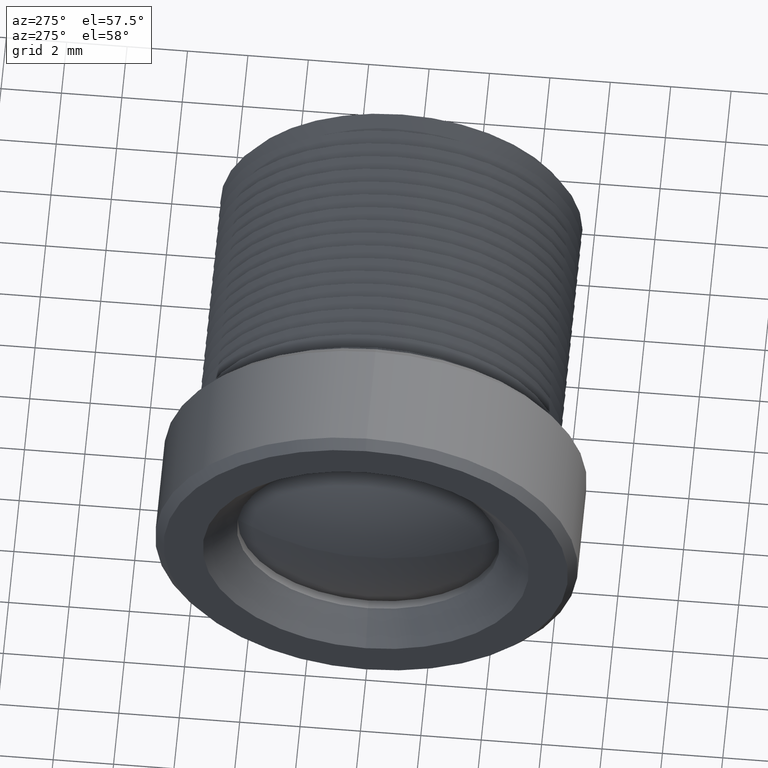
[diagram: clean part render]
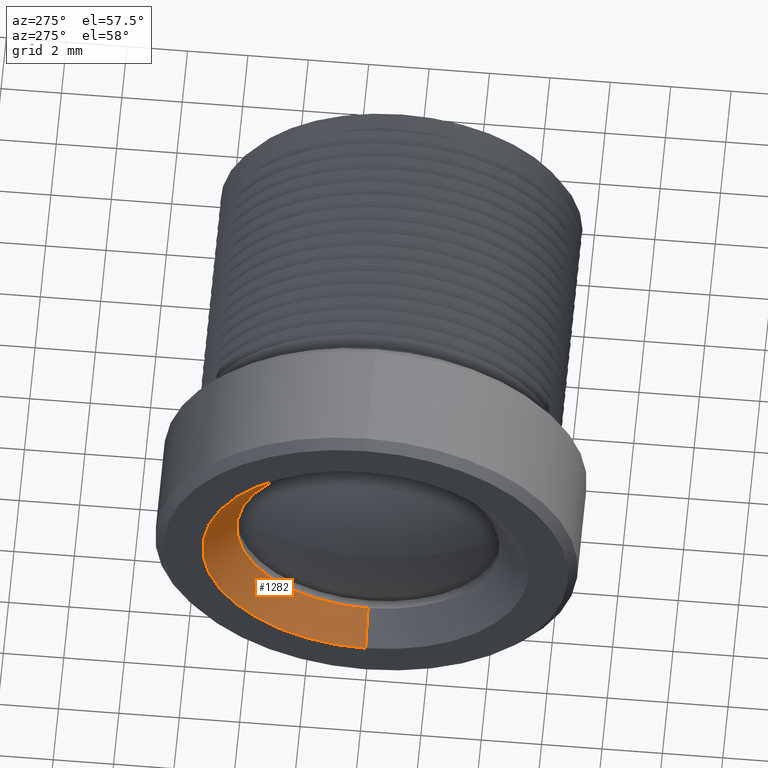
[diagram: same view with one face highlighted and labeled with its STEP entity id]
A machine part, auxiliary view. The second image highlights one B-rep face of the part: STEP entity #1282.
In plain terms, the highlighted conical surface has half-angle 49.399 deg.
Its self-contained STEP definition (entity closure, byte-faithful):
#27 = CARTESIAN_POINT ( 'NONE',  ( -8.000000000000000000, -0.001274935426565094055, 5.399999849494260040 ) ) ;
#156 = DIRECTION ( 'NONE',  ( 0.000000000000000000, -0.0002360991531231236139, 0.9999999721285947052 ) ) ;
#189 = EDGE_CURVE ( 'NONE', #1978, #2491, #1807, .T. ) ;
#262 = DIRECTION ( 'NONE',  ( -0.6507913734560208940, -0.0001792598408215759925, 0.7592565812037030959 ) ) ;
#324 = VERTEX_POINT ( 'NONE', #1598 ) ;
#327 = ORIENTED_EDGE ( 'NONE', *, *, #1578, .F. ) ;
#335 = EDGE_CURVE ( 'NONE', #1494, #324, #451, .T. ) ;
#420 = CARTESIAN_POINT ( 'NONE',  ( -8.000000000000000000, 0.001274935427009181964, -5.399999849494260040 ) ) ;
#451 = CIRCLE ( 'NONE', #1202, 4.349999999999852207 ) ;
#868 = FACE_OUTER_BOUND ( 'NONE', #1071, .T. ) ;
#1043 = DIRECTION ( 'NONE',  ( 0.000000000000000000, -0.0002360991531231236139, 0.9999999721285945942 ) ) ;
#1044 = AXIS2_PLACEMENT_3D ( 'NONE', #2053, #1698, #1043 ) ;
#1071 = EDGE_LOOP ( 'NONE', ( #327, #1088, #1505, #1990 ) ) ;
#1088 = ORIENTED_EDGE ( 'NONE', *, *, #335, .F. ) ;
#1199 = CARTESIAN_POINT ( 'NONE',  ( -8.000000000000000000, -0.001274935426565094055, 5.399999849494260040 ) ) ;
#1202 = AXIS2_PLACEMENT_3D ( 'NONE', #2230, #1371, #156 ) ;
#1282 = ADVANCED_FACE ( 'NONE', ( #868 ), #1311, .F. ) ;
#1311 = CONICAL_SURFACE ( 'NONE', #1572, 5.399999999999847589, 0.8621700546671575704 ) ;
#1371 = DIRECTION ( 'NONE',  ( -1.000000000000000000, 0.000000000000000000, 0.000000000000000000 ) ) ;
#1373 = LINE ( 'NONE', #2172, #1449 ) ;
#1449 = VECTOR ( 'NONE', #1852, 1000.000000000000114 ) ;
#1494 = VERTEX_POINT ( 'NONE', #2381 ) ;
#1505 = ORIENTED_EDGE ( 'NONE', *, *, #2549, .T. ) ;
#1572 = AXIS2_PLACEMENT_3D ( 'NONE', #1647, #2449, #2613 ) ;
#1578 = EDGE_CURVE ( 'NONE', #324, #2491, #1373, .T. ) ;
#1598 = CARTESIAN_POINT ( 'NONE',  ( -7.099999999999879741, 0.001027031316214177970, -4.349999878759239991 ) ) ;
#1647 = CARTESIAN_POINT ( 'NONE',  ( -8.000000000000000000, 2.220446049250315100E-13, 5.421010862427519705E-17 ) ) ;
#1698 = DIRECTION ( 'NONE',  ( -1.000000000000000000, 0.000000000000000000, 0.000000000000000000 ) ) ;
#1807 = CIRCLE ( 'NONE', #1044, 5.399999999999847589 ) ;
#1852 = DIRECTION ( 'NONE',  ( -0.6507913734560208940, 0.0001792598408216689628, -0.7592565812037030959 ) ) ;
#1902 = VECTOR ( 'NONE', #262, 1000.000000000000114 ) ;
#1978 = VERTEX_POINT ( 'NONE', #1199 ) ;
#1990 = ORIENTED_EDGE ( 'NONE', *, *, #189, .T. ) ;
#2053 = CARTESIAN_POINT ( 'NONE',  ( -8.000000000000000000, 2.220446049250315100E-13, 5.421010862427519705E-17 ) ) ;
#2080 = LINE ( 'NONE', #27, #1902 ) ;
#2172 = CARTESIAN_POINT ( 'NONE',  ( -8.000000000000000000, 0.001274935427009181964, -5.399999849494260040 ) ) ;
#2230 = CARTESIAN_POINT ( 'NONE',  ( -7.099999999999879741, 2.220446049250315100E-13, 5.421010862427519705E-17 ) ) ;
#2381 = CARTESIAN_POINT ( 'NONE',  ( -7.099999999999879741, -0.001027031315770088110, 4.349999878759245320 ) ) ;
#2449 = DIRECTION ( 'NONE',  ( -1.000000000000000000, 0.000000000000000000, 0.000000000000000000 ) ) ;
#2491 = VERTEX_POINT ( 'NONE', #420 ) ;
#2549 = EDGE_CURVE ( 'NONE', #1494, #1978, #2080, .T. ) ;
#2613 = DIRECTION ( 'NONE',  ( 0.000000000000000000, -0.0002360991531231236139, 0.9999999721285945942 ) ) ;